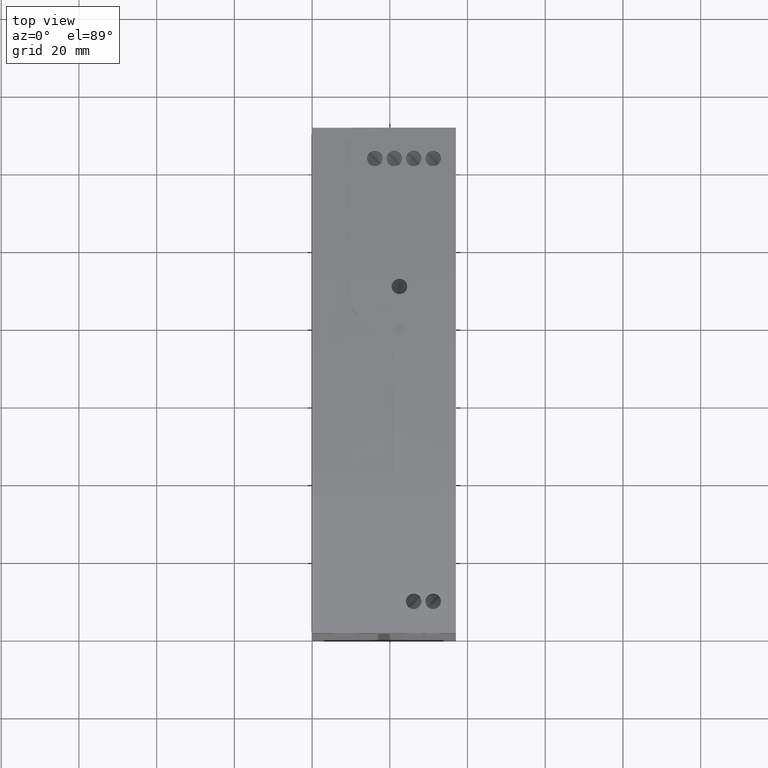
[diagram: clean part render]
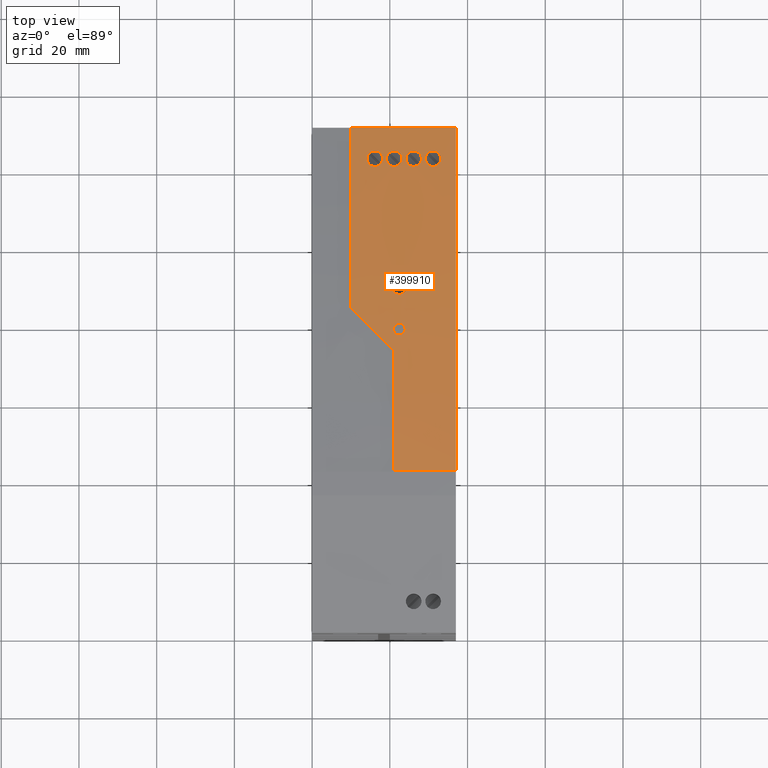
[diagram: same view with one face highlighted and labeled with its STEP entity id]
A machine part, top view. The second image highlights one B-rep face of the part: STEP entity #399910.
In plain terms, the highlighted cylindrical surface (partial cylindrical patch) has radius 550 mm, axis along (1, 0, 0).
Its self-contained STEP definition (entity closure, byte-faithful):
#379180=CARTESIAN_POINT('',(50.1000000000002,115.338943570664,45.));
#379190=VERTEX_POINT('',#379180);
#379220=CARTESIAN_POINT('',(50.1000000000002,115.338943570664,53.));
#379230=DIRECTION('',(0.,0.,-1.));
#379240=VECTOR('',#379230,1.);
#379250=LINE('',#379220,#379240);
#379260=CARTESIAN_POINT('',(50.1000000000002,115.338943570664,
17.9996937946443));
#379270=VERTEX_POINT('',#379260);
#379280=EDGE_CURVE('',#379190,#379270,#379250,.T.);
#380410=CARTESIAN_POINT('',(-38.2290414310936,125.,53.));
#380420=DIRECTION('',(0.,0.,-1.));
#380430=VECTOR('',#380420,1.);
#380440=LINE('',#380410,#380430);
#380450=CARTESIAN_POINT('',(-38.2290414310936,125.,45.));
#380460=VERTEX_POINT('',#380450);
#380470=CARTESIAN_POINT('',(-38.2290414310937,125.,29.0071108276838));
#380480=VERTEX_POINT('',#380470);
#380490=EDGE_CURVE('',#380460,#380480,#380440,.T.);
#381180=CARTESIAN_POINT('',(43.5142135623731,116.562678430028,
32.7107864376268));
#381190=VERTEX_POINT('',#381180);
#381220=CARTESIAN_POINT('',(-53.6691393971699,-424.783233079,45.));
#381230=DIRECTION('',(0.,0.,1.));
#381240=DIRECTION('',(0.,-1.,0.));
#381250=AXIS2_PLACEMENT_3D('',#381220,#381230,#381240);
#381260=CYLINDRICAL_SURFACE('',#381250,550.);
#381270=CARTESIAN_POINT('',(42.1000000000001,111.17867513459,34.125));
#381280=DIRECTION('',(0.,1.,0.));
#381290=DIRECTION('',(-0.707106781186498,0.,0.707106781186598));
#381300=AXIS2_PLACEMENT_3D('',#381270,#381280,#381290);
#381310=CYLINDRICAL_SURFACE('',#381300,2.);
#381320=CARTESIAN_POINT('',(43.7398774049797,116.52211831302,
32.9800973418506));
#381330=CARTESIAN_POINT('',(43.7230110099351,116.52515345567,
32.9559391132534));
#381340=CARTESIAN_POINT('',(43.7056199527753,116.528282198331,
32.9321673119273));
#381350=CARTESIAN_POINT('',(43.6877327934991,116.531499250769,
32.908815566434));
#381360=CARTESIAN_POINT('',(43.669845613574,116.534716306921,
32.8854637939837));
#381370=CARTESIAN_POINT('',(43.6514624966581,116.538021642952,
32.8625322749743));
#381380=CARTESIAN_POINT('',(43.632614494755,116.541409524268,
32.8400514366453));
#381390=CARTESIAN_POINT('',(43.6137664557139,116.544797412259,
32.8175705540201));
#381400=CARTESIAN_POINT('',(43.5944537053065,116.548267814147,
32.7955405304515));
#381410=CARTESIAN_POINT('',(43.5747090640366,116.551814683893,
32.7739880916704));
#381420=CARTESIAN_POINT('',(43.554964366697,116.555361563712,
32.7524355916859));
#381430=CARTESIAN_POINT('',(43.5347879567043,116.558984879225,
32.731360831958));
#381440=CARTESIAN_POINT('',(43.5142135623731,116.562678430028,
32.7107864376268));
#381450=B_SPLINE_CURVE_WITH_KNOTS('',3,(#381320,#381330,#381340,#381350,
#381360,#381370,#381380,#381390,#381400,#381410,#381420,#381430,#381440)
,.UNSPECIFIED.,.F.,.F.,(4,3,3,3,4),(0.,0.0888225637629006,
0.177513187888574,0.265983152991334,0.354150132641045),.UNSPECIFIED.);
#381460=SURFACE_CURVE('',#381450,(#381260,#381310),.CURVE_3D.);
#381470=CARTESIAN_POINT('',(43.7398774055792,116.522118312912,
32.9800973427093));
#381480=VERTEX_POINT('',#381470);
#381490=EDGE_CURVE('',#381480,#381190,#381460,.T.);
#381510=CARTESIAN_POINT('',(40.6857864376271,117.062822522321,
35.5392135623732));
#381520=CARTESIAN_POINT('',(40.8742554192687,117.030003280396,
35.7276825440148));
#381530=CARTESIAN_POINT('',(41.0964496885746,116.991207617918,
35.8750182842942));
#381540=CARTESIAN_POINT('',(41.3406483607251,116.948379650218,
35.9752391974916));
#381550=CARTESIAN_POINT('',(41.5859597133391,116.905356538776,
36.0759167628533));
#381560=CARTESIAN_POINT('',(41.8473102959399,116.859340906234,
36.1260342553982));
#381570=CARTESIAN_POINT('',(42.108057442219,116.813229765435,
36.1249837693404));
#381580=CARTESIAN_POINT('',(42.5650959784094,116.73240599193,
36.1231424735985));
#381590=CARTESIAN_POINT('',(43.0148765126323,116.652204055649,
35.9626453296472));
#381600=CARTESIAN_POINT('',(43.3718407069047,116.588218126585,
35.6685093832758));
#381610=CARTESIAN_POINT('',(43.7297847550436,116.524056558448,
35.3735660443172));
#381620=CARTESIAN_POINT('',(43.9768532013782,116.479427811089,
34.9595565592254));
#381630=CARTESIAN_POINT('',(44.0645659149028,116.463589402179,
34.4998076386657));
#381640=CARTESIAN_POINT('',(44.1142757375852,116.454613229092,
34.2392520544057));
#381650=CARTESIAN_POINT('',(44.1119208756861,116.455039308468,
33.9695386240618));
#381660=CARTESIAN_POINT('',(44.0558619270312,116.465161021329,
33.7071434188742));
#381670=CARTESIAN_POINT('',(43.9999513049177,116.475255953119,
33.445442485952));
#381680=CARTESIAN_POINT('',(43.8927320673662,116.49461180059,
33.1990355243321));
#381690=CARTESIAN_POINT('',(43.7398774049797,116.52211831302,
32.9800973418506));
#381700=B_SPLINE_CURVE_WITH_KNOTS('',3,(#381510,#381520,#381530,#381540,
#381550,#381560,#381570,#381580,#381590,#381600,#381610,#381620,#381630,
#381640,#381650,#381660,#381670,#381680,#381690),.UNSPECIFIED.,.F.,.F.,(
4,3,3,3,3,3,4),(0.,0.80018165429334,1.59866093505566,2.98747441106144,
4.37983763461301,5.17800233758482,5.97819897419177),.UNSPECIFIED.);
#381710=SURFACE_CURVE('',#381700,(#381260,#381310),.CURVE_3D.);
#381720=CARTESIAN_POINT('',(40.6857864376271,117.062822522321,
35.5392135623732));
#381730=VERTEX_POINT('',#381720);
#381740=EDGE_CURVE('',#381730,#381480,#381710,.T.);
#383580=CARTESIAN_POINT('',(7.68578643762711,121.783847045486,
31.8642135623732));
#383590=VERTEX_POINT('',#383580);
#383620=CARTESIAN_POINT('',(9.10000000000011,111.17867513459,30.45));
#383630=DIRECTION('',(0.,1.,0.));
#383640=DIRECTION('',(-0.707106781186498,0.,0.707106781186598));
#383650=AXIS2_PLACEMENT_3D('',#383620,#383630,#383640);
#383660=CYLINDRICAL_SURFACE('',#383650,2.);
#383670=CARTESIAN_POINT('',(10.5142135623732,121.458926775831,
29.0357864376268));
#383680=CARTESIAN_POINT('',(10.3048725431716,121.483524306948,
28.8264454184253));
#383690=CARTESIAN_POINT('',(10.0480254701932,121.513573469702,
28.6645309514625));
#383700=CARTESIAN_POINT('',(9.7707042884184,121.545776065808,
28.5658142985636));
#383710=CARTESIAN_POINT('',(9.49292317240804,121.578032069578,
28.4669339251441));
#383720=CARTESIAN_POINT('',(9.1960480868701,121.61227845204,
28.430765830795));
#383730=CARTESIAN_POINT('',(8.90331107082071,121.645800229472,
28.4596951326128));
#383740=CARTESIAN_POINT('',(8.44972011500199,121.697741645256,
28.5045205866662));
#383750=CARTESIAN_POINT('',(8.01928477926482,121.746405785754,
28.7056065032026));
#383760=CARTESIAN_POINT('',(7.69295249977325,121.783042571109,
29.0286565045333));
#383770=CARTESIAN_POINT('',(7.36603644665255,121.819744895764,
29.3522844078478));
#383780=CARTESIAN_POINT('',(7.15954962406632,121.842665472317,
29.7819100267374));
#383790=CARTESIAN_POINT('',(7.11111336006062,121.84805112889,
30.239453251105));
#383800=CARTESIAN_POINT('',(7.07966506841274,121.851547882864,
30.5365230820839));
#383810=CARTESIAN_POINT('',(7.11567662459735,121.847552792891,
30.837872715349));
#383820=CARTESIAN_POINT('',(7.21467228392614,121.836526420399,
31.1174873804077));
#383830=CARTESIAN_POINT('',(7.31449829255032,121.825407561623,
31.3994473790061));
#383840=CARTESIAN_POINT('',(7.47583370840003,121.807415303801,
31.6542608331461));
#383850=CARTESIAN_POINT('',(7.68578643762716,121.783847045486,
31.8642135623732));
#383860=B_SPLINE_CURVE_WITH_KNOTS('',3,(#383670,#383680,#383690,#383700,
#383710,#383720,#383730,#383740,#383750,#383760,#383770,#383780,#383790,
#383800,#383810,#383820,#383830,#383840,#383850),.UNSPECIFIED.,.F.,.F.,(
4,3,3,3,3,3,4),(0.,0.89110743923486,1.77773577621934,3.148381787236,
4.52014913047529,5.41179313882744,6.30366771832464),.UNSPECIFIED.);
#383870=SURFACE_CURVE('',#383860,(#381260,#383660),.CURVE_3D.);
#383880=CARTESIAN_POINT('',(10.5142135623731,121.458926775831,
29.0357864376268));
#383890=VERTEX_POINT('',#383880);
#383900=EDGE_CURVE('',#383890,#383590,#383870,.T.);
#387600=CARTESIAN_POINT('',(40.6857864376271,117.062822522321,
40.5392135623732));
#387610=VERTEX_POINT('',#387600);
#387640=CARTESIAN_POINT('',(42.1000000000001,111.17867513459,39.125));
#387650=DIRECTION('',(0.,1.,0.));
#387660=DIRECTION('',(-0.707106781186498,0.,0.707106781186598));
#387670=AXIS2_PLACEMENT_3D('',#387640,#387650,#387660);
#387680=CYLINDRICAL_SURFACE('',#387670,2.);
#387690=CARTESIAN_POINT('',(43.2449026581493,116.610956446987,
37.4851225950203));
#387700=CARTESIAN_POINT('',(43.0245990860584,116.650392610255,
37.3313146673541));
#387710=CARTESIAN_POINT('',(42.7773693456406,116.694504180315,
37.2247044585053));
#387720=CARTESIAN_POINT('',(42.5187463292299,116.74044197084,
37.1693283732291));
#387730=CARTESIAN_POINT('',(42.2601910385375,116.786367731617,
37.1139667893117));
#387740=CARTESIAN_POINT('',(41.9921902413452,116.833771778938,
37.1104050316867));
#387750=CARTESIAN_POINT('',(41.7317382864786,116.879644121561,
37.159196522957));
#387760=CARTESIAN_POINT('',(41.2860303647001,116.958144843537,
37.2426927446908));
#387770=CARTESIAN_POINT('',(40.8765674971596,117.029650458264,
37.4776077232518));
#387780=CARTESIAN_POINT('',(40.5786186777415,117.081473372576,
37.8267708706539));
#387790=CARTESIAN_POINT('',(40.2812555348929,117.133194418834,
38.175247669727));
#387800=CARTESIAN_POINT('',(40.1103943159214,117.162704407503,
38.6208403876801));
#387810=CARTESIAN_POINT('',(40.1004636828377,117.164422638983,
39.0819359041832));
#387820=CARTESIAN_POINT('',(40.0946159142989,117.165434439531,
39.3534573502026));
#387830=CARTESIAN_POINT('',(40.1439787992233,117.156901349663,
39.6217145439871));
#387840=CARTESIAN_POINT('',(40.2447041422288,117.13944589989,
39.8719118288906));
#387850=CARTESIAN_POINT('',(40.3458945632954,117.121909853254,
40.1232643470717));
#387860=CARTESIAN_POINT('',(40.4959696576247,117.095876464514,
40.3493967823709));
#387870=CARTESIAN_POINT('',(40.6857864376271,117.062822522321,
40.5392135623732));
#387880=B_SPLINE_CURVE_WITH_KNOTS('',3,(#387690,#387700,#387710,#387720,
#387730,#387740,#387750,#387760,#387770,#387780,#387790,#387800,#387810,
#387820,#387830,#387840,#387850,#387860,#387870),.UNSPECIFIED.,.F.,.F.,(
4,3,3,3,3,3,4),(0.,0.807591063605594,1.61197308552692,2.98548580239974,
4.35842706581013,5.16749945428128,5.97658197317935),.UNSPECIFIED.);
#387890=SURFACE_CURVE('',#387880,(#381260,#387680),.CURVE_3D.);
#387900=CARTESIAN_POINT('',(43.2449026581493,116.610956446987,
37.4851225950204));
#387910=VERTEX_POINT('',#387900);
#387920=EDGE_CURVE('',#387910,#387610,#387890,.T.);
#387940=CARTESIAN_POINT('',(43.5142135623731,116.562678430028,
37.7107864376268));
#387950=CARTESIAN_POINT('',(43.4935820077595,116.566382242344,
37.6901548830132));
#387960=CARTESIAN_POINT('',(43.4724646818554,116.570172043496,
37.6699408079537));
#387970=CARTESIAN_POINT('',(43.4508828214444,116.574043850253,
37.6501726871506));
#387980=CARTESIAN_POINT('',(43.4293012128446,116.577915611835,
37.6304047969965));
#387990=CARTESIAN_POINT('',(43.4072560194925,116.581869208326,
37.6110838140463));
#388000=CARTESIAN_POINT('',(43.3847745656545,116.585899569415,
37.5922396418723));
#388010=CARTESIAN_POINT('',(43.3622931555889,116.589929922655,
37.5733955063888));
#388020=CARTESIAN_POINT('',(43.3393756507164,116.594037010552,
37.5550283440827));
#388030=CARTESIAN_POINT('',(43.3160528129813,116.598215155016,
37.5371663953548));
#388040=CARTESIAN_POINT('',(43.2927300025739,116.602393294584,
37.5193044675561));
#388050=CARTESIAN_POINT('',(43.2690020417677,116.606642457803,
37.5019479066446));
#388060=CARTESIAN_POINT('',(43.2449026581493,116.610956446987,
37.4851225950203));
#388070=B_SPLINE_CURVE_WITH_KNOTS('',3,(#387940,#387950,#387960,#387970,
#387980,#387990,#388000,#388010,#388020,#388030,#388040,#388050,#388060)
,.UNSPECIFIED.,.F.,.F.,(4,3,3,3,4),(0.,0.0884037949927358,
0.17710755933339,0.266038339793379,0.355114227300903),.UNSPECIFIED.);
#388080=SURFACE_CURVE('',#388070,(#381260,#387680),.CURVE_3D.);
#388090=CARTESIAN_POINT('',(43.5142135623731,116.562678430028,
37.7107864376268));
#388100=VERTEX_POINT('',#388090);
#388110=EDGE_CURVE('',#388100,#387910,#388080,.T.);
#390040=CARTESIAN_POINT('',(43.5142135623731,116.562678430028,
22.7107864376268));
#390050=VERTEX_POINT('',#390040);
#390080=CARTESIAN_POINT('',(42.1000000000001,111.17867513459,24.125));
#390090=DIRECTION('',(0.,1.,0.));
#390100=DIRECTION('',(-0.707106781186498,0.,0.707106781186598));
#390110=AXIS2_PLACEMENT_3D('',#390080,#390090,#390100);
#390120=CYLINDRICAL_SURFACE('',#390110,2.);
#390130=CARTESIAN_POINT('',(40.9550973418509,117.015856825697,
25.7648774049797));
#390140=CARTESIAN_POINT('',(41.172853943401,116.977826026826,
25.9169071306087));
#390150=CARTESIAN_POINT('',(41.4222008314649,116.934135158865,
26.0254236762534));
#390160=CARTESIAN_POINT('',(41.6828384916266,116.888254367676,
26.081010295457));
#390170=CARTESIAN_POINT('',(41.9418309098383,116.842663193123,
26.1362460312246));
#390180=CARTESIAN_POINT('',(42.2096243403616,116.795323146077,
26.1394840529142));
#390190=CARTESIAN_POINT('',(42.4699375373489,116.749109340341,
26.0904887988642));
#390200=CARTESIAN_POINT('',(42.9155635697373,116.669996659425,
26.0066146007026));
#390210=CARTESIAN_POINT('',(43.3248776517521,116.596718619545,
25.7713107524594));
#390220=CARTESIAN_POINT('',(43.6225065775355,116.543226299749,
25.421909295734));
#390230=CARTESIAN_POINT('',(43.9198679614513,116.489782064779,
25.0728219197656));
#390240=CARTESIAN_POINT('',(44.0899091527193,116.459012613989,
24.6267428965043));
#390250=CARTESIAN_POINT('',(44.0995595840924,116.457269377636,
24.1669698661486));
#390260=CARTESIAN_POINT('',(44.1051979628526,116.456250871162,
23.8983420309141));
#390270=CARTESIAN_POINT('',(44.0555350741911,116.465229660235,
23.6268766186179));
#390280=CARTESIAN_POINT('',(43.9550866400276,116.483346796978,
23.3775686934631));
#390290=CARTESIAN_POINT('',(43.8548090186685,116.501433125486,
23.1286847170361));
#390300=CARTESIAN_POINT('',(43.7030249823469,116.52878267783,
22.8995978576005));
#390310=CARTESIAN_POINT('',(43.5142135623731,116.562678430028,
22.7107864376268));
#390320=B_SPLINE_CURVE_WITH_KNOTS('',3,(#390130,#390140,#390150,#390160,
#390170,#390180,#390190,#390200,#390210,#390220,#390230,#390240,#390250,
#390260,#390270,#390280,#390290,#390300,#390310),.UNSPECIFIED.,.F.,.F.,(
4,3,3,3,3,3,4),(0.,0.808895015683781,1.61335053823716,2.98748326568698,
4.3600153356406,5.16860094706517,5.97739151590925),.UNSPECIFIED.);
#390330=SURFACE_CURVE('',#390320,(#381260,#390120),.CURVE_3D.);
#390340=CARTESIAN_POINT('',(40.9550973418509,117.015856825697,
25.7648774049797));
#390350=VERTEX_POINT('',#390340);
#390360=EDGE_CURVE('',#390350,#390050,#390330,.T.);
#390380=CARTESIAN_POINT('',(40.6857864376271,117.062822522321,
25.5392135623732));
#390390=CARTESIAN_POINT('',(40.7065690280203,117.059203524351,
25.5599961527664));
#390400=CARTESIAN_POINT('',(40.7278109377792,117.05550330968,
25.580321374979));
#390410=CARTESIAN_POINT('',(40.7494803148024,117.051727265648,
25.6001598489295));
#390420=CARTESIAN_POINT('',(40.7711496964628,117.047951220807,
25.6199983271253));
#390430=CARTESIAN_POINT('',(40.7932463600216,117.044099378698,
25.6393498902023));
#390440=CARTESIAN_POINT('',(40.8157360090479,117.040177562762,
25.6581881820389));
#390450=CARTESIAN_POINT('',(40.8382256796617,117.036255743062,
25.6770264919581));
#390460=CARTESIAN_POINT('',(40.8611081418242,117.032263983167,
25.6953513798959));
#390470=CARTESIAN_POINT('',(40.8843473103061,117.028208431291,
25.7131399617287));
#390480=CARTESIAN_POINT('',(40.9075865189891,117.024152872399,
25.7309285743338));
#390490=CARTESIAN_POINT('',(40.9311822353716,117.020033556037,
25.7481807489401));
#390500=CARTESIAN_POINT('',(40.9550973418509,117.015856825697,
25.7648774049797));
#390510=B_SPLINE_CURVE_WITH_KNOTS('',3,(#390380,#390390,#390400,#390410,
#390420,#390430,#390440,#390450,#390460,#390470,#390480,#390490,#390500)
,.UNSPECIFIED.,.F.,.F.,(4,3,3,3,4),(0.,0.0888579858905106,
0.177693625689659,0.266416386507358,0.354938335487243),.UNSPECIFIED.);
#390520=SURFACE_CURVE('',#390510,(#381260,#390120),.CURVE_3D.);
#390530=CARTESIAN_POINT('',(40.6857864376271,117.062822522321,
25.5392135623732));
#390540=VERTEX_POINT('',#390530);
#390550=EDGE_CURVE('',#390540,#390350,#390520,.T.);
#392470=CARTESIAN_POINT('',(-2.96066017177964,122.87418733512,
31.5106601717799));
#392480=VERTEX_POINT('',#392470);
#392510=CARTESIAN_POINT('',(-1.89999999999989,111.17867513459,30.45));
#392520=DIRECTION('',(0.,1.,0.));
#392530=DIRECTION('',(-0.707106781186498,0.,0.707106781186598));
#392540=AXIS2_PLACEMENT_3D('',#392510,#392520,#392530);
#392550=CYLINDRICAL_SURFACE('',#392540,1.5);
#392560=CARTESIAN_POINT('',(-0.839339828220192,122.673625748711,
29.3893398282201));
#392570=CARTESIAN_POINT('',(-0.996345237852928,122.688776831739,
29.2323344185874));
#392580=CARTESIAN_POINT('',(-1.18907494507588,122.707302527014,
29.1108141725272));
#392590=CARTESIAN_POINT('',(-1.39727663789891,122.727179939489,
29.0367522435192));
#392600=CARTESIAN_POINT('',(-1.60581596337155,122.747089586395,
28.9625702111395));
#392610=CARTESIAN_POINT('',(-1.82872607427833,122.768244205554,
28.935503767077));
#392620=CARTESIAN_POINT('',(-2.0485003418493,122.788962730393,
28.9573688839931));
#392630=CARTESIAN_POINT('',(-2.38907852739911,122.821069662997,
28.9912526590519));
#392640=CARTESIAN_POINT('',(-2.71192552489136,122.851154676525,
29.1425579795961));
#392650=CARTESIAN_POINT('',(-2.95643596549924,122.873796192652,
29.385132378744));
#392660=CARTESIAN_POINT('',(-3.20133680195503,122.896473859195,
29.628094082573));
#392670=CARTESIAN_POINT('',(-3.35570863867146,122.910623009037,
29.9502851605766));
#392680=CARTESIAN_POINT('',(-3.39176852802317,122.913933225963,
30.2930711664505));
#392690=CARTESIAN_POINT('',(-3.41518354890571,122.916082672338,
30.515654808));
#392700=CARTESIAN_POINT('',(-3.38811369089288,122.913602779895,
30.7414107660285));
#392710=CARTESIAN_POINT('',(-3.31388869811673,122.906778448539,
30.9509179067846));
#392720=CARTESIAN_POINT('',(-3.23903903450947,122.899896684226,
31.1621882407031));
#392730=CARTESIAN_POINT('',(-3.11810741467278,122.88876562795,
31.3532129288868));
#392740=CARTESIAN_POINT('',(-2.96066017177964,122.87418733512,
31.5106601717799));
#392750=B_SPLINE_CURVE_WITH_KNOTS('',3,(#392560,#392570,#392580,#392590,
#392600,#392610,#392620,#392630,#392640,#392650,#392660,#392670,#392680,
#392690,#392700,#392710,#392720,#392730,#392740),.UNSPECIFIED.,.F.,.F.,(
4,3,3,3,3,3,4),(0.,0.667617468109591,1.33188725645042,2.35882784390036,
3.38658654269037,4.05461505622343,4.72281188842132),.UNSPECIFIED.);
#392760=SURFACE_CURVE('',#392750,(#381260,#392550),.CURVE_3D.);
#392770=CARTESIAN_POINT('',(-0.839339828220146,122.673625748711,
29.3893398282201));
#392780=VERTEX_POINT('',#392770);
#392790=EDGE_CURVE('',#392780,#392480,#392760,.T.);
#393810=CARTESIAN_POINT('',(43.5142135623731,116.562678430028,
27.7107864376268));
#393820=VERTEX_POINT('',#393810);
#393850=CARTESIAN_POINT('',(42.1000000000001,111.17867513459,29.125));
#393860=DIRECTION('',(0.,1.,0.));
#393870=DIRECTION('',(-0.707106781186498,0.,0.707106781186598));
#393880=AXIS2_PLACEMENT_3D('',#393850,#393860,#393870);
#393890=CYLINDRICAL_SURFACE('',#393880,2.);
#393900=CARTESIAN_POINT('',(43.7398774049796,116.52211831302,
27.9800973418505));
#393910=CARTESIAN_POINT('',(43.723011009935,116.52515345567,
27.9559391132533));
#393920=CARTESIAN_POINT('',(43.7056199527753,116.528282198331,
27.9321673119273));
#393930=CARTESIAN_POINT('',(43.6877327934989,116.531499250769,
27.908815566434));
#393940=CARTESIAN_POINT('',(43.6698456135739,116.534716306921,
27.8854637939837));
#393950=CARTESIAN_POINT('',(43.651462496658,116.538021642952,
27.8625322749742));
#393960=CARTESIAN_POINT('',(43.632614494755,116.541409524268,
27.8400514366453));
#393970=CARTESIAN_POINT('',(43.6137664557143,116.544797412259,
27.8175705540207));
#393980=CARTESIAN_POINT('',(43.594453705307,116.548267814147,
27.7955405304521));
#393990=CARTESIAN_POINT('',(43.5747090640366,116.551814683893,
27.7739880916704));
#394000=CARTESIAN_POINT('',(43.5549643666969,116.555361563712,
27.7524355916857));
#394010=CARTESIAN_POINT('',(43.5347879567044,116.558984879225,
27.731360831958));
#394020=CARTESIAN_POINT('',(43.5142135623731,116.562678430028,
27.7107864376268));
#394030=B_SPLINE_CURVE_WITH_KNOTS('',3,(#393900,#393910,#393920,#393930,
#393940,#393950,#393960,#393970,#393980,#393990,#394000,#394010,#394020)
,.UNSPECIFIED.,.F.,.F.,(4,3,3,3,4),(0.,0.0888225637629551,
0.17751318788853,0.265983152991268,0.354150132640971),.UNSPECIFIED.);
#394040=SURFACE_CURVE('',#394030,(#381260,#393890),.CURVE_3D.);
#394050=CARTESIAN_POINT('',(43.7398774055792,116.522118312912,
27.9800973427092));
#394060=VERTEX_POINT('',#394050);
#394070=EDGE_CURVE('',#394060,#393820,#394040,.T.);
#394090=CARTESIAN_POINT('',(40.6857864376271,117.062822522321,
30.5392135623732));
#394100=CARTESIAN_POINT('',(40.8742554188301,117.030003280472,
30.7276825435762));
#394110=CARTESIAN_POINT('',(41.0964496885191,116.991207617927,
30.8750182842183));
#394120=CARTESIAN_POINT('',(41.340648360381,116.948379650279,
30.9752391973503));
#394130=CARTESIAN_POINT('',(41.5859597129225,116.905356538849,
31.0759167627356));
#394140=CARTESIAN_POINT('',(41.8473102951238,116.859340906378,
31.1260342553003));
#394150=CARTESIAN_POINT('',(42.1080574414435,116.813229765572,
31.1249837693435));
#394160=CARTESIAN_POINT('',(42.565095979323,116.732405991769,
31.1231424737721));
#394170=CARTESIAN_POINT('',(43.0148765127839,116.652204055622,
30.9626453295096));
#394180=CARTESIAN_POINT('',(43.3718407068721,116.58821812659,
30.6685093833027));
#394190=CARTESIAN_POINT('',(43.7297847546229,116.524056558523,
30.3735660446765));
#394200=CARTESIAN_POINT('',(43.9768532020194,116.479427810973,
29.9595565568093));
#394210=CARTESIAN_POINT('',(44.0645659150446,116.463589402153,
29.4998076379229));
#394220=CARTESIAN_POINT('',(44.114275737598,116.45461322909,
29.2392520538035));
#394230=CARTESIAN_POINT('',(44.1119208756415,116.455039308476,
28.9695386236112));
#394240=CARTESIAN_POINT('',(44.0558619269525,116.465161021343,
28.7071434185058));
#394250=CARTESIAN_POINT('',(43.9999513046818,116.475255953162,
28.4454424850885));
#394260=CARTESIAN_POINT('',(43.8927320674482,116.494611800575,
28.1990355244494));
#394270=CARTESIAN_POINT('',(43.7398774049796,116.52211831302,
27.9800973418505));
#394280=B_SPLINE_CURVE_WITH_KNOTS('',3,(#394090,#394100,#394110,#394120,
#394130,#394140,#394150,#394160,#394170,#394180,#394190,#394200,#394210,
#394220,#394230,#394240,#394250,#394260,#394270),.UNSPECIFIED.,.F.,.F.,(
4,3,3,3,3,3,4),(0.,0.800181653916458,1.59866093426808,2.98747441101883,
4.37983763536962,5.17800233796183,5.97819897419191),.UNSPECIFIED.);
#394290=SURFACE_CURVE('',#394280,(#381260,#393890),.CURVE_3D.);
#394300=CARTESIAN_POINT('',(40.6857864376271,117.062822522321,
30.5392135623732));
#394310=VERTEX_POINT('',#394300);
#394320=EDGE_CURVE('',#394310,#394060,#394290,.T.);
#397900=CARTESIAN_POINT('',(-53.6691393971699,-424.783233079,53.));
#397910=DIRECTION('',(0.,0.,1.));
#397920=DIRECTION('',(0.,-1.,0.));
#397930=AXIS2_PLACEMENT_3D('',#397900,#397910,#397920);
#397940=CYLINDRICAL_SURFACE('',#397930,550.);
#397950=CARTESIAN_POINT('',(-53.6691393971699,-424.783233079,
54.9945638357614));
#397960=DIRECTION('',(0.705646578460115,-0.0258843391196783,
0.708091030373829));
#397970=DIRECTION('',(-0.707615124816947,0.0259565488108019,
0.706121160073913));
#397980=AXIS2_PLACEMENT_3D('',#397950,#397960,#397970);
#397990=ELLIPSE('',#397980,776.73629012026,550.);
#398000=CARTESIAN_POINT('',(3.50556517955513,122.236924827968,
18.0136132754282));
#398010=VERTEX_POINT('',#398000);
#398020=CARTESIAN_POINT('',(-7.49438281958817,123.275059308772,
29.0135366746492));
#398030=VERTEX_POINT('',#398020);
#398040=EDGE_CURVE('',#398010,#398030,#397990,.T.);
#398050=ORIENTED_EDGE('',*,*,#398040,.T.);
#398060=CARTESIAN_POINT('',(-53.6691393971699,-424.783233079,
18.0246392469397));
#398070=DIRECTION('',(0.000297123446285636,-1.08990028136296E-5,
0.999999955799434));
#398080=DIRECTION('',(-0.999327859253322,0.0366570773390595,
0.000297323276241509));
#398090=AXIS2_PLACEMENT_3D('',#398060,#398070,#398080);
#398100=ELLIPSE('',#398090,550.000024310313,550.);
#398110=EDGE_CURVE('',#379270,#398010,#398100,.T.);
#398120=ORIENTED_EDGE('',*,*,#398110,.T.);
#398130=ORIENTED_EDGE('',*,*,#379280,.T.);
#398140=CARTESIAN_POINT('',(-53.6691393971699,-424.783233079,45.));
#398150=DIRECTION('',(0.,0.,1.));
#398160=DIRECTION('',(0.,-1.,0.));
#398170=AXIS2_PLACEMENT_3D('',#398140,#398150,#398160);
#398180=CIRCLE('',#398170,550.);
#398190=EDGE_CURVE('',#379190,#380460,#398180,.T.);
#398200=ORIENTED_EDGE('',*,*,#398190,.F.);
#398210=ORIENTED_EDGE('',*,*,#380490,.F.);
#398220=CARTESIAN_POINT('',(-53.6691393971699,-424.783233079,
29.00809707438));
#398230=DIRECTION('',(-0.000208645396603515,7.65347465190101E-6,
0.999999978204261));
#398240=DIRECTION('',(-0.999327881643091,0.036657078160355,
-0.000208785720771526));
#398250=AXIS2_PLACEMENT_3D('',#398220,#398230,#398240);
#398260=ELLIPSE('',#398250,550.000011987657,550.);
#398270=EDGE_CURVE('',#398030,#380480,#398260,.T.);
#398280=ORIENTED_EDGE('',*,*,#398270,.T.);
#398290=EDGE_LOOP('',(#398280,#398210,#398200,#398130,#398120,#398050));
#398300=FACE_OUTER_BOUND('',#398290,.T.);
#398310=ORIENTED_EDGE('',*,*,#381490,.F.);
#398320=CARTESIAN_POINT('',(43.5142135623731,116.562678430028,
32.7107864376268));
#398330=CARTESIAN_POINT('',(43.3049932930114,116.600238014116,
32.5015661682651));
#398340=CARTESIAN_POINT('',(43.0486683832492,116.646119977151,
32.3400562431388));
#398350=CARTESIAN_POINT('',(42.7724925625983,116.695309085818,
32.2414518181766));
#398360=CARTESIAN_POINT('',(42.4959175928857,116.744569286105,
32.1427048830425));
#398370=CARTESIAN_POINT('',(42.2005313760898,116.796949136698,
32.1061951983828));
#398380=CARTESIAN_POINT('',(41.90915662051,116.848366193381,
32.1341261203877));
#398390=CARTESIAN_POINT('',(41.4574969824547,116.928067707553,
32.177421807065));
#398400=CARTESIAN_POINT('',(41.0270295113803,117.003391214116,
32.3758435338191));
#398410=CARTESIAN_POINT('',(40.6992935387116,117.060470275783,
32.697407127608));
#398420=CARTESIAN_POINT('',(40.370705885851,117.117697667539,
33.0198063615649));
#398430=CARTESIAN_POINT('',(40.1614172480155,117.153875074275,
33.4498063113384));
#398440=CARTESIAN_POINT('',(40.1116213772574,117.162491978934,
33.9097084474023));
#398450=CARTESIAN_POINT('',(40.0793333065041,117.168079254004,
34.2079129467468));
#398460=CARTESIAN_POINT('',(40.1150749795618,117.161903680144,
34.5105566255019));
#398470=CARTESIAN_POINT('',(40.2142121813912,117.144729196777,
34.7911863877221));
#398480=CARTESIAN_POINT('',(40.3141643493283,117.127413529056,
35.0741230916434));
#398490=CARTESIAN_POINT('',(40.4758292367135,117.099383637634,
35.3292563614596));
#398500=CARTESIAN_POINT('',(40.6857864376271,117.062822522321,
35.5392135623732));
#398510=B_SPLINE_CURVE_WITH_KNOTS('',3,(#398320,#398330,#398340,#398350,
#398360,#398370,#398380,#398390,#398400,#398410,#398420,#398430,#398440,
#398450,#398460,#398470,#398480,#398490,#398500),.UNSPECIFIED.,.F.,.F.,(
4,3,3,3,3,3,4),(0.,0.894886175792396,1.78513970201053,3.16239572468942,
4.5408982014608,5.43616253471984,6.33170491572342),.UNSPECIFIED.);
#398520=SURFACE_CURVE('',#398510,(#381260,#381310),.CURVE_3D.);
#398530=EDGE_CURVE('',#381190,#381730,#398520,.T.);
#398540=ORIENTED_EDGE('',*,*,#398530,.F.);
#398550=ORIENTED_EDGE('',*,*,#381740,.F.);
#398560=EDGE_LOOP('',(#398550,#398540,#398310));
#398570=FACE_BOUND('',#398560,.T.);
#398580=CARTESIAN_POINT('',(7.68578643762716,121.783847045486,
31.8642135623732));
#398590=CARTESIAN_POINT('',(7.89644668794934,121.760199364342,
32.0748738126954));
#398600=CARTESIAN_POINT('',(8.15013841933489,121.731593895856,
32.2348975210917));
#398610=CARTESIAN_POINT('',(8.42978694957905,121.699816380525,
32.334360492859));
#398620=CARTESIAN_POINT('',(8.7096096539941,121.668019073126,
32.4338854133898));
#398630=CARTESIAN_POINT('',(9.00619948599994,121.634087724143,
32.4692807042998));
#398640=CARTESIAN_POINT('',(9.29850585517796,121.600401056737,
32.4401244748677));
#398650=CARTESIAN_POINT('',(9.75226881825367,121.548107423651,
32.3948636853187));
#398660=CARTESIAN_POINT('',(10.1826326231018,121.497884092764,
32.1932322858821));
#398670=CARTESIAN_POINT('',(10.5086712705462,121.459577965593,
31.8697342186262));
#398680=CARTESIAN_POINT('',(10.8353593644939,121.421195535258,
31.5455917655275));
#398690=CARTESIAN_POINT('',(11.0413485816285,121.396732742207,
31.1154793941397));
#398700=CARTESIAN_POINT('',(11.0891686431192,121.391062855697,
30.6578656037725));
#398710=CARTESIAN_POINT('',(11.1198788195829,121.387421638814,
30.3639847551009));
#398720=CARTESIAN_POINT('',(11.0845701726728,121.391617293364,
30.0621944923958));
#398730=CARTESIAN_POINT('',(10.9848555507712,121.403420856513,
29.7811804782097));
#398740=CARTESIAN_POINT('',(10.8859158424655,121.415132690471,
29.50235031205));
#398750=CARTESIAN_POINT('',(10.7235601919443,121.434328585497,
29.2451330671979));
#398760=CARTESIAN_POINT('',(10.5142135623732,121.458926775831,
29.0357864376268));
#398770=B_SPLINE_CURVE_WITH_KNOTS('',3,(#398580,#398590,#398600,#398610,
#398620,#398630,#398640,#398650,#398660,#398670,#398680,#398690,#398700,
#398710,#398720,#398730,#398740,#398750,#398760),.UNSPECIFIED.,.F.,.F.,(
4,3,3,3,3,3,4),(0.,0.891358612619044,1.77921594798807,3.15067515567638,
4.52304667756857,5.41343043068428,6.30406994828955),.UNSPECIFIED.);
#398780=SURFACE_CURVE('',#398770,(#381260,#383660),.CURVE_3D.);
#398790=EDGE_CURVE('',#383590,#383890,#398780,.T.);
#398800=ORIENTED_EDGE('',*,*,#398790,.F.);
#398810=ORIENTED_EDGE('',*,*,#383900,.F.);
#398820=EDGE_LOOP('',(#398810,#398800));
#398830=FACE_BOUND('',#398820,.T.);
#398840=ORIENTED_EDGE('',*,*,#387920,.F.);
#398850=CARTESIAN_POINT('',(40.6857864376271,117.062822522321,
40.5392135623732));
#398860=CARTESIAN_POINT('',(40.8963456979203,117.026156566773,
40.7497728226663));
#398870=CARTESIAN_POINT('',(41.1493833892963,116.981962961167,
40.9092966791702));
#398880=CARTESIAN_POINT('',(41.4277986769656,116.933087857451,
41.0086521391486));
#398890=CARTESIAN_POINT('',(41.7064921668052,116.884163916044,
41.1081068785338));
#398900=CARTESIAN_POINT('',(42.0015429619905,116.832135763614,
41.1438288796631));
#398910=CARTESIAN_POINT('',(42.2923593524492,116.780605039579,
41.1157279772854));
#398920=CARTESIAN_POINT('',(42.7443540056729,116.700514602779,
41.0720527992618));
#398930=CARTESIAN_POINT('',(43.1749113066203,116.62358303843,
40.8730078655763));
#398940=CARTESIAN_POINT('',(43.5023862934381,116.56480154841,
40.5509427351676));
#398950=CARTESIAN_POINT('',(43.8308531133153,116.505842025174,
40.2279021566897));
#398960=CARTESIAN_POINT('',(44.0396876133314,116.468083417235,
39.7972471678217));
#398970=CARTESIAN_POINT('',(44.088740439931,116.459223616477,
39.3369232469162));
#398980=CARTESIAN_POINT('',(44.1201694690497,116.453546982624,
39.0419854234078));
#398990=CARTESIAN_POINT('',(44.0850581916585,116.459898193178,
38.7390360615669));
#399000=CARTESIAN_POINT('',(43.9852034059033,116.47791399485,
38.4571616075941));
#399010=CARTESIAN_POINT('',(43.8861230767377,116.495790069055,
38.1774733235347));
#399020=CARTESIAN_POINT('',(43.7233974172637,116.52512538313,
37.9199702925174));
#399030=CARTESIAN_POINT('',(43.5142135623731,116.562678430028,
37.7107864376268));
#399040=B_SPLINE_CURVE_WITH_KNOTS('',3,(#398850,#398860,#398870,#398880,
#398890,#398900,#398910,#398920,#398930,#398940,#398950,#398960,#398970,
#398980,#398990,#399000,#399010,#399020,#399030),.UNSPECIFIED.,.F.,.F.,(
4,3,3,3,3,3,4),(0.,0.894771209649192,1.78612393889328,3.16476422741348,
4.54460380131627,5.43826906490165,6.33233887939117),.UNSPECIFIED.);
#399050=SURFACE_CURVE('',#399040,(#381260,#387680),.CURVE_3D.);
#399060=EDGE_CURVE('',#387610,#388100,#399050,.T.);
#399070=ORIENTED_EDGE('',*,*,#399060,.F.);
#399080=ORIENTED_EDGE('',*,*,#388110,.F.);
#399090=EDGE_LOOP('',(#399080,#399070,#398840));
#399100=FACE_BOUND('',#399090,.T.);
#399110=ORIENTED_EDGE('',*,*,#390360,.F.);
#399120=CARTESIAN_POINT('',(43.5142135623731,116.562678430028,
22.7107864376268));
#399130=CARTESIAN_POINT('',(43.3049932926397,116.600238014183,
22.5015661678934));
#399140=CARTESIAN_POINT('',(43.048668383469,116.646119977112,
22.3400562432135));
#399150=CARTESIAN_POINT('',(42.772492562576,116.695309085822,
22.2414518181687));
#399160=CARTESIAN_POINT('',(42.4959175928546,116.744569286111,
22.1427048830351));
#399170=CARTESIAN_POINT('',(42.2005313760492,116.796949136705,
22.10619519838));
#399180=CARTESIAN_POINT('',(41.9091566204643,116.848366193389,
22.1341261203921));
#399190=CARTESIAN_POINT('',(41.4574969854952,116.928067707016,
22.177421806784));
#399200=CARTESIAN_POINT('',(41.0270295091369,117.003391214507,
22.3758435360168));
#399210=CARTESIAN_POINT('',(40.699293538704,117.060470275784,
22.6974071276154));
#399220=CARTESIAN_POINT('',(40.3707058858707,117.117697667536,
23.0198063615488));
#399230=CARTESIAN_POINT('',(40.1614172480349,117.153875074272,
23.4498063113068));
#399240=CARTESIAN_POINT('',(40.1116213772648,117.162491978933,
23.9097084473339));
#399250=CARTESIAN_POINT('',(40.079333306556,117.168079253995,
24.2079129461712));
#399260=CARTESIAN_POINT('',(40.1150749794485,117.161903680163,
24.5105566251669));
#399270=CARTESIAN_POINT('',(40.2142121813808,117.144729196779,
24.7911863876926));
#399280=CARTESIAN_POINT('',(40.3141643493175,117.127413529058,
25.0741230916269));
#399290=CARTESIAN_POINT('',(40.4758292366792,117.09938363764,
25.3292563614253));
#399300=CARTESIAN_POINT('',(40.6857864376271,117.062822522321,
25.5392135623732));
#399310=B_SPLINE_CURVE_WITH_KNOTS('',3,(#399120,#399130,#399140,#399150,
#399160,#399170,#399180,#399190,#399200,#399210,#399220,#399230,#399240,
#399250,#399260,#399270,#399280,#399290,#399300),.UNSPECIFIED.,.F.,.F.,(
4,3,3,3,3,3,4),(0.,0.894886175816448,1.78513970205719,3.16239572470012,
4.54089820139201,5.43616253468845,6.33170491572344),.UNSPECIFIED.);
#399320=SURFACE_CURVE('',#399310,(#381260,#390120),.CURVE_3D.);
#399330=EDGE_CURVE('',#390050,#390540,#399320,.T.);
#399340=ORIENTED_EDGE('',*,*,#399330,.F.);
#399350=ORIENTED_EDGE('',*,*,#390550,.F.);
#399360=EDGE_LOOP('',(#399350,#399340,#399110));
#399370=FACE_BOUND('',#399360,.T.);
#399380=CARTESIAN_POINT('',(-2.96066017177964,122.87418733512,
31.5106601717799));
#399390=CARTESIAN_POINT('',(-2.80264948672422,122.859556872276,
31.6686708568353));
#399400=CARTESIAN_POINT('',(-2.61228051351903,122.841859134234,
31.7887674701183));
#399410=CARTESIAN_POINT('',(-2.4023416640241,122.822204668096,
31.8633834768335));
#399420=CARTESIAN_POINT('',(-2.192263611251,122.802537169753,
31.9380489588734));
#399430=CARTESIAN_POINT('',(-1.96954630773817,122.781558229385,
31.9645370821341));
#399440=CARTESIAN_POINT('',(-1.75006265039292,122.760746405536,
31.9424874509336));
#399450=CARTESIAN_POINT('',(-1.40941849732538,122.728445931804,
31.9082658690784));
#399460=CARTESIAN_POINT('',(-1.08666582648886,122.697491421651,
31.7565787677711));
#399470=CARTESIAN_POINT('',(-0.842389428936293,122.673920027792,
31.5137010294131));
#399480=CARTESIAN_POINT('',(-0.597678708253791,122.650306724025,
31.2703914547395));
#399490=CARTESIAN_POINT('',(-0.443690346016904,122.635302281134,
30.9479019893153));
#399500=CARTESIAN_POINT('',(-0.408046210686253,122.631834262574,
30.6051576315254));
#399510=CARTESIAN_POINT('',(-0.385145381991188,122.629606112046,
30.3849494612014));
#399520=CARTESIAN_POINT('',(-0.411659877415683,122.632190997221,
30.15882140084));
#399530=CARTESIAN_POINT('',(-0.486416811025731,122.639453716428,
29.9482205984202));
#399540=CARTESIAN_POINT('',(-0.560591800173183,122.646659899083,
29.7392592154478));
#399550=CARTESIAN_POINT('',(-0.682288551989374,122.658470239539,
29.5463911044509));
#399560=CARTESIAN_POINT('',(-0.839339828220192,122.673625748711,
29.3893398282201));
#399570=B_SPLINE_CURVE_WITH_KNOTS('',3,(#399380,#399390,#399400,#399410,
#399420,#399430,#399440,#399450,#399460,#399470,#399480,#399490,#399500,
#399510,#399520,#399530,#399540,#399550,#399560),.UNSPECIFIED.,.F.,.F.,(
4,3,3,3,3,3,4),(0.,0.667898225191035,1.33317309530988,2.36048718656694,
3.38846022172095,4.05563220024764,4.7229970508516),.UNSPECIFIED.);
#399580=SURFACE_CURVE('',#399570,(#381260,#392550),.CURVE_3D.);
#399590=EDGE_CURVE('',#392480,#392780,#399580,.T.);
#399600=ORIENTED_EDGE('',*,*,#399590,.F.);
#399610=ORIENTED_EDGE('',*,*,#392790,.F.);
#399620=EDGE_LOOP('',(#399610,#399600));
#399630=FACE_BOUND('',#399620,.T.);
#399640=ORIENTED_EDGE('',*,*,#394070,.F.);
#399650=CARTESIAN_POINT('',(43.5142135623731,116.562678430028,
27.7107864376268));
#399660=CARTESIAN_POINT('',(43.3049932928996,116.600238014136,
27.5015661681533));
#399670=CARTESIAN_POINT('',(43.0486683838176,116.64611997705,
27.340056243338));
#399680=CARTESIAN_POINT('',(42.772492562576,116.695309085822,
27.2414518181687));
#399690=CARTESIAN_POINT('',(42.4959175928055,116.74456928612,
27.1427048830175));
#399700=CARTESIAN_POINT('',(42.2005313760716,116.796949136701,
27.1061951983778));
#399710=CARTESIAN_POINT('',(41.9091566204643,116.848366193389,
27.1341261203921));
#399720=CARTESIAN_POINT('',(41.4574969854952,116.928067707016,
27.177421806784));
#399730=CARTESIAN_POINT('',(41.0270295091369,117.003391214507,
27.3758435360168));
#399740=CARTESIAN_POINT('',(40.699293538704,117.060470275784,
27.6974071276154));
#399750=CARTESIAN_POINT('',(40.3707058859637,117.11769766752,
28.0198063614576));
#399760=CARTESIAN_POINT('',(40.161417248033,117.153875074272,
28.4498063113242));
#399770=CARTESIAN_POINT('',(40.1116213772648,117.162491978933,
28.9097084473339));
#399780=CARTESIAN_POINT('',(40.0793333064961,117.168079254006,
29.2079129467246));
#399790=CARTESIAN_POINT('',(40.1150749795385,117.161903680148,
29.510556625422));
#399800=CARTESIAN_POINT('',(40.2142121813807,117.144729196779,
29.7911863876926));
#399810=CARTESIAN_POINT('',(40.3141643493174,117.127413529058,
30.0741230916268));
#399820=CARTESIAN_POINT('',(40.4758292366793,117.09938363764,
30.3292563614255));
#399830=CARTESIAN_POINT('',(40.6857864376271,117.062822522321,
30.5392135623732));
#399840=B_SPLINE_CURVE_WITH_KNOTS('',3,(#399650,#399660,#399670,#399680,
#399690,#399700,#399710,#399720,#399730,#399740,#399750,#399760,#399770,
#399780,#399790,#399800,#399810,#399820,#399830),.UNSPECIFIED.,.F.,.F.,(
4,3,3,3,3,3,4),(0.,0.894886175816448,1.78513970205719,3.16239572470013,
4.54089820139201,5.43616253468844,6.33170491572349),.UNSPECIFIED.);
#399850=SURFACE_CURVE('',#399840,(#381260,#393890),.CURVE_3D.);
#399860=EDGE_CURVE('',#393820,#394310,#399850,.T.);
#399870=ORIENTED_EDGE('',*,*,#399860,.F.);
#399880=ORIENTED_EDGE('',*,*,#394320,.F.);
#399890=EDGE_LOOP('',(#399880,#399870,#399640));
#399900=FACE_BOUND('',#399890,.T.);
#399910=ADVANCED_FACE('',(#398300,#398570,#398830,#399100,#399370,
#399630,#399900),#397940,.T.);